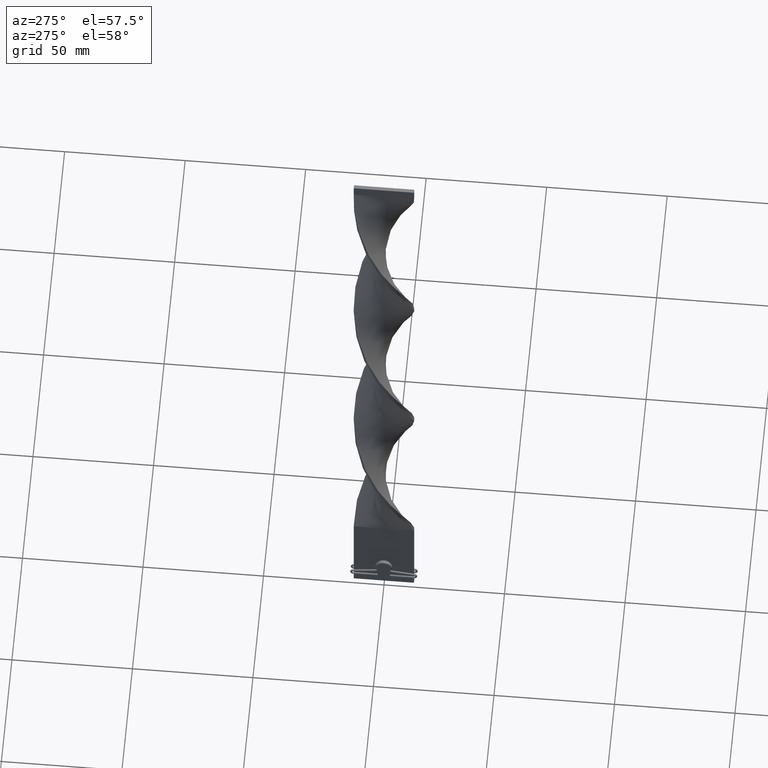
[diagram: clean part render]
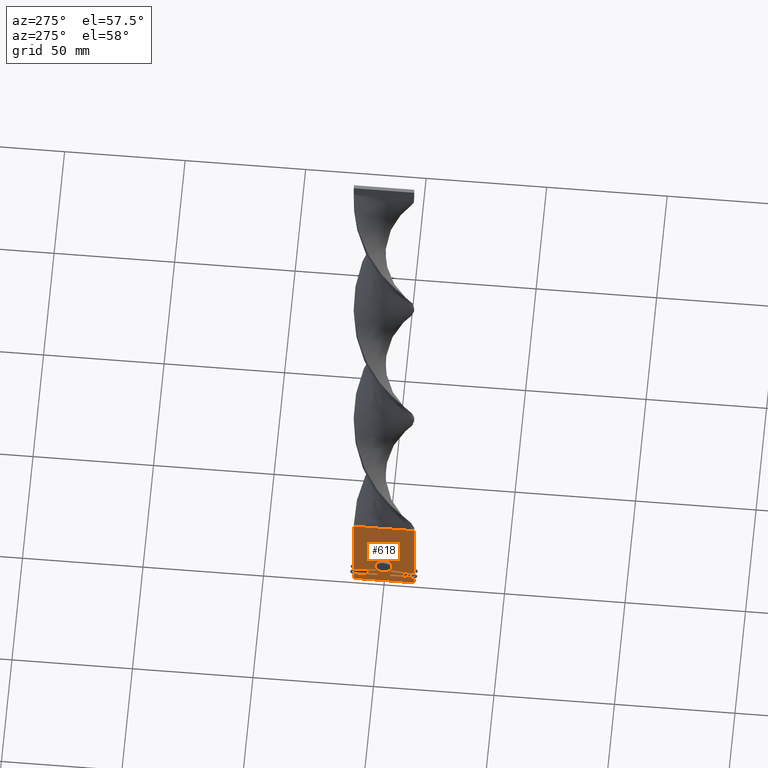
[diagram: same view with one face highlighted and labeled with its STEP entity id]
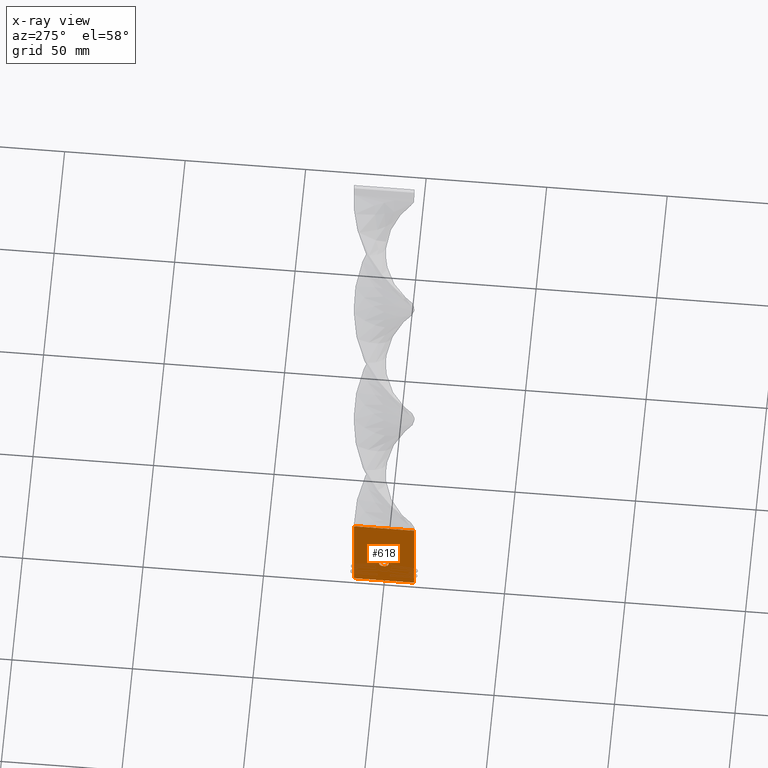
[diagram: x-ray of the same camera — body ghosted, the highlighted face saturated]
A machine part, auxiliary view. The second image highlights one B-rep face of the part: STEP entity #618.
The next image is the same camera in x-ray: the body ghosted, the highlighted face saturated — about 0% of this face is hidden behind the body in this view.
In plain terms, the highlighted planar face has unit normal (1, 0, -0).
Its self-contained STEP definition (entity closure, byte-faithful):
#80 = VECTOR ( 'NONE', #1265, 1000.000000000000000 ) ;
#325 = CARTESIAN_POINT ( 'NONE',  ( -0.7500000000000000000, 9.107298248878236013E-17, 13.00000000000000000 ) ) ;
#335 = LINE ( 'NONE', #4013, #1475 ) ;
#390 = CIRCLE ( 'NONE', #4304, 1.999999999999999556 ) ;
#618 = ADVANCED_FACE ( 'NONE', ( #2083, #3927 ), #1375, .F. ) ;
#625 = CARTESIAN_POINT ( 'NONE',  ( -0.7500000000000015543, 12.49999999999999822, 40.00000000000000000 ) ) ;
#658 = VERTEX_POINT ( 'NONE', #2445 ) ;
#685 = VERTEX_POINT ( 'NONE', #2722 ) ;
#926 = CARTESIAN_POINT ( 'NONE',  ( -0.7500000000000015543, 12.49999999999999822, 0.000000000000000000 ) ) ;
#1060 = LINE ( 'NONE', #3263, #1386 ) ;
#1101 = VERTEX_POINT ( 'NONE', #4254 ) ;
#1254 = EDGE_CURVE ( 'NONE', #1101, #1776, #4134, .T. ) ;
#1265 = DIRECTION ( 'NONE',  ( 1.214306433183764966E-16, -1.000000000000000000, 0.000000000000000000 ) ) ;
#1310 = VECTOR ( 'NONE', #2395, 1000.000000000000000 ) ;
#1333 = CARTESIAN_POINT ( 'NONE',  ( -0.7500000000000015543, 12.49999999999999822, 40.00000000000000000 ) ) ;
#1347 = ORIENTED_EDGE ( 'NONE', *, *, #4027, .T. ) ;
#1355 = DIRECTION ( 'NONE',  ( -1.000000000000000000, -1.214306433183764966E-16, 0.000000000000000000 ) ) ;
#1372 = EDGE_CURVE ( 'NONE', #658, #2496, #1060, .T. ) ;
#1375 = PLANE ( 'NONE',  #2623 ) ;
#1384 = CARTESIAN_POINT ( 'NONE',  ( -0.7500000000000002220, 1.999999999999999556, 13.00000000000000000 ) ) ;
#1386 = VECTOR ( 'NONE', #4336, 1000.000000000000000 ) ;
#1475 = VECTOR ( 'NONE', #2199, 1000.000000000000000 ) ;
#1523 = ORIENTED_EDGE ( 'NONE', *, *, #2732, .F. ) ;
#1583 = EDGE_CURVE ( 'NONE', #3509, #658, #1634, .T. ) ;
#1634 = LINE ( 'NONE', #1333, #80 ) ;
#1776 = VERTEX_POINT ( 'NONE', #1384 ) ;
#2065 = ORIENTED_EDGE ( 'NONE', *, *, #3391, .T. ) ;
#2079 = AXIS2_PLACEMENT_3D ( 'NONE', #325, #1355, #3548 ) ;
#2083 = FACE_BOUND ( 'NONE', #3960, .T. ) ;
#2199 = DIRECTION ( 'NONE',  ( -0.000000000000000000, -0.000000000000000000, -1.000000000000000000 ) ) ;
#2210 = ORIENTED_EDGE ( 'NONE', *, *, #1583, .F. ) ;
#2395 = DIRECTION ( 'NONE',  ( 1.214306433183764966E-16, -1.000000000000000000, 0.000000000000000000 ) ) ;
#2415 = DIRECTION ( 'NONE',  ( -1.000000000000000000, -1.214306433183764966E-16, 0.000000000000000000 ) ) ;
#2434 = DIRECTION ( 'NONE',  ( -1.084202172485504681E-16, 1.000000000000000000, 0.000000000000000000 ) ) ;
#2445 = CARTESIAN_POINT ( 'NONE',  ( -0.7499999999999984457, -12.50000000000000178, 40.00000000000000000 ) ) ;
#2496 = VERTEX_POINT ( 'NONE', #3955 ) ;
#2623 = AXIS2_PLACEMENT_3D ( 'NONE', #625, #2793, #4333 ) ;
#2722 = CARTESIAN_POINT ( 'NONE',  ( -0.7500000000000015543, 12.49999999999999822, 0.000000000000000000 ) ) ;
#2732 = EDGE_CURVE ( 'NONE', #1776, #1101, #390, .T. ) ;
#2793 = DIRECTION ( 'NONE',  ( 1.000000000000000000, 1.214306433183764966E-16, -0.000000000000000000 ) ) ;
#3263 = CARTESIAN_POINT ( 'NONE',  ( -0.7499999999999984457, -12.50000000000000000, 40.00000000000000000 ) ) ;
#3391 = EDGE_CURVE ( 'NONE', #685, #2496, #3468, .T. ) ;
#3468 = LINE ( 'NONE', #926, #1310 ) ;
#3509 = VERTEX_POINT ( 'NONE', #4206 ) ;
#3548 = DIRECTION ( 'NONE',  ( -1.084202172485504681E-16, 1.000000000000000000, 0.000000000000000000 ) ) ;
#3580 = ORIENTED_EDGE ( 'NONE', *, *, #1372, .F. ) ;
#3867 = CARTESIAN_POINT ( 'NONE',  ( -0.7500000000000000000, 9.107298248878236013E-17, 13.00000000000000000 ) ) ;
#3927 = FACE_OUTER_BOUND ( 'NONE', #4217, .T. ) ;
#3955 = CARTESIAN_POINT ( 'NONE',  ( -0.7499999999999984457, -12.50000000000000000, 0.000000000000000000 ) ) ;
#3960 = EDGE_LOOP ( 'NONE', ( #4654, #1523 ) ) ;
#4013 = CARTESIAN_POINT ( 'NONE',  ( -0.7500000000000015543, 12.49999999999999822, 40.00000000000000000 ) ) ;
#4027 = EDGE_CURVE ( 'NONE', #3509, #685, #335, .T. ) ;
#4134 = CIRCLE ( 'NONE', #2079, 1.999999999999999556 ) ;
#4206 = CARTESIAN_POINT ( 'NONE',  ( -0.7500000000000015543, 12.49999999999999822, 40.00000000000000000 ) ) ;
#4217 = EDGE_LOOP ( 'NONE', ( #2065, #3580, #2210, #1347 ) ) ;
#4254 = CARTESIAN_POINT ( 'NONE',  ( -0.7499999999999997780, -1.999999999999999556, 13.00000000000000000 ) ) ;
#4304 = AXIS2_PLACEMENT_3D ( 'NONE', #3867, #2415, #2434 ) ;
#4333 = DIRECTION ( 'NONE',  ( -1.214306433183764966E-16, 1.000000000000000000, 0.000000000000000000 ) ) ;
#4336 = DIRECTION ( 'NONE',  ( -0.000000000000000000, -0.000000000000000000, -1.000000000000000000 ) ) ;
#4654 = ORIENTED_EDGE ( 'NONE', *, *, #1254, .F. ) ;